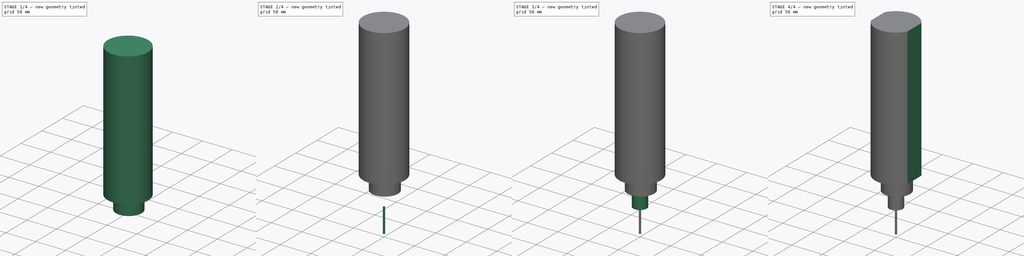
[diagram: build sequence overview — one tinted view per stage of 4, left to right]
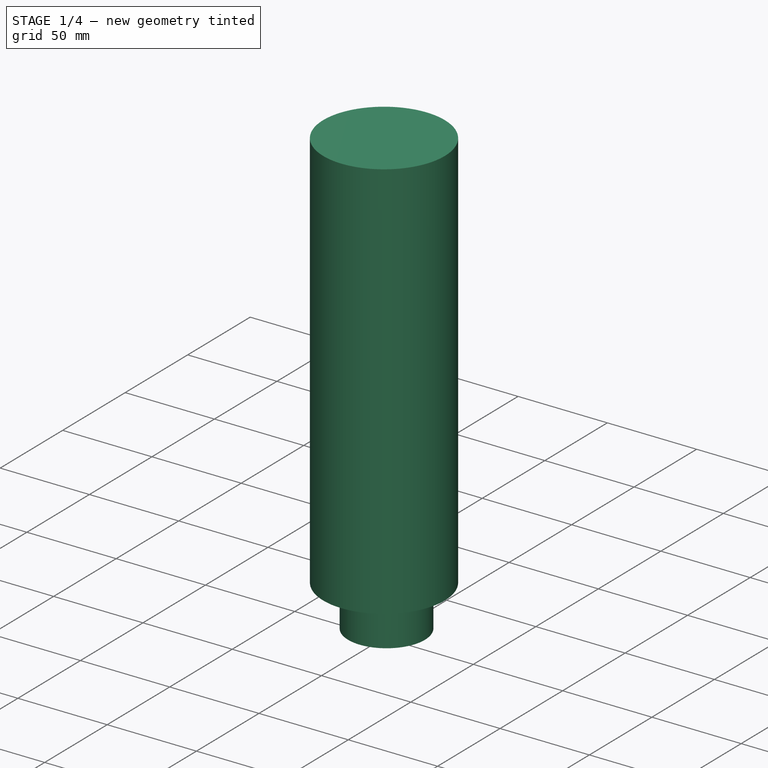
[diagram: stage 1 of 4 — iso view after this stage's code; geometry added in this stage tinted green]
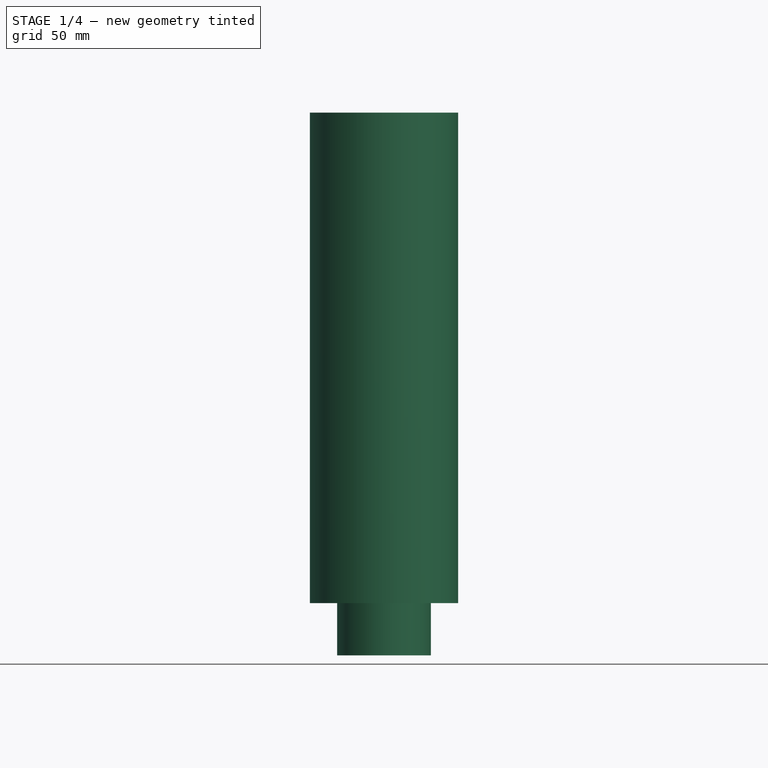
[diagram: stage 1 of 4 — front view after this stage's code; geometry added in this stage tinted green]
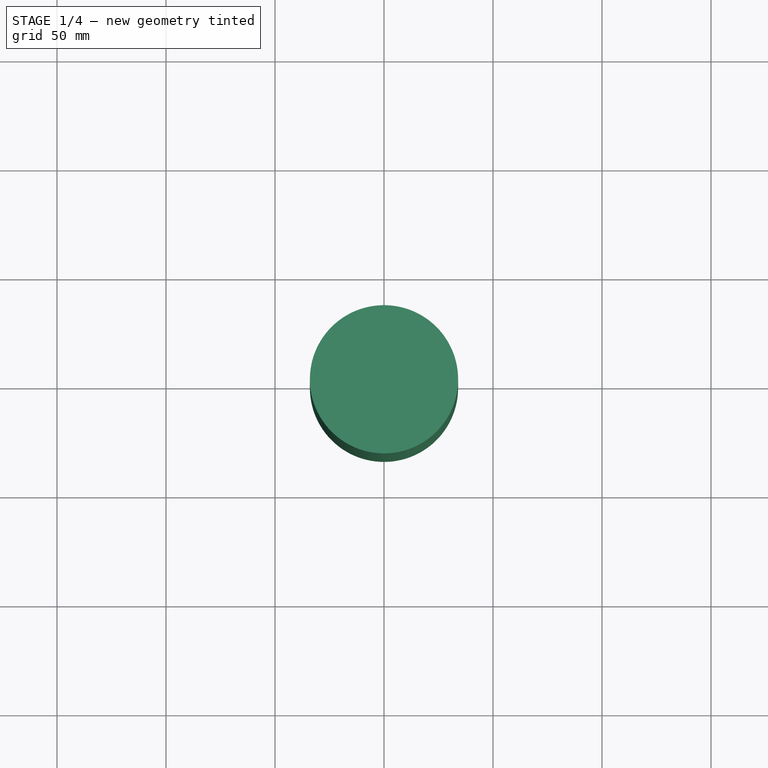
[diagram: stage 1 of 4 — top view after this stage's code; geometry added in this stage tinted green]
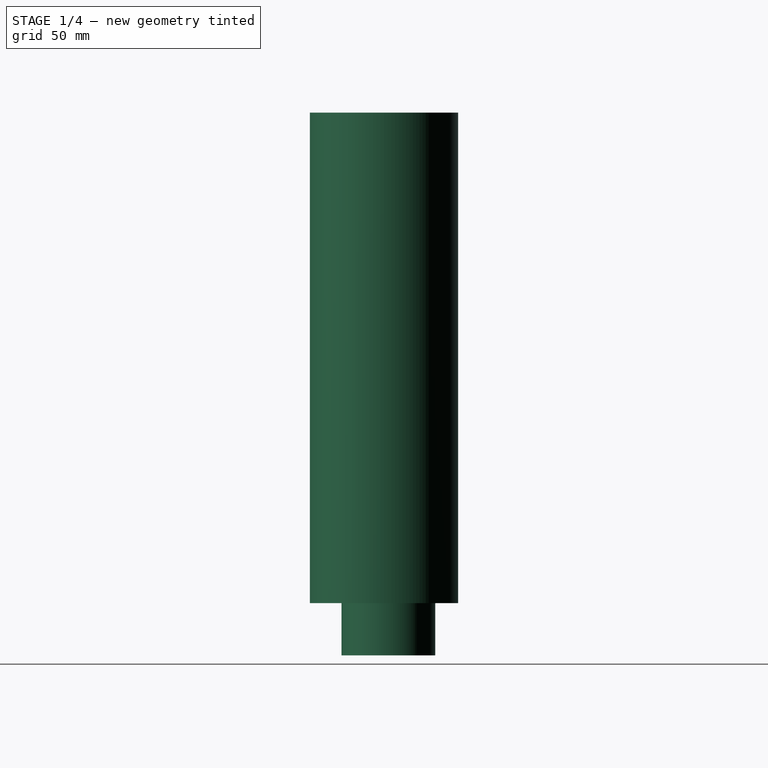
[diagram: stage 1 of 4 — right view after this stage's code; geometry added in this stage tinted green]
FCSTD DOCUMENT
Label: FME1050-1
objects: Part::Cylinder×4, Part::Fuse×2, Part::MultiFuse×1, Sketcher::SketchObject×1, Part::Part2DObjectPython×1, Part::Extrusion×1, Part::MultiCommon×1
note: 11 computed .brp shape members not serialized (recipe doc carries the construction recipe); baked Part::Feature solids carry a one-line shape summary decoded from their .brp

FEATURE [Part::Cylinder] Cylinder  label="Core"
  Angle = 360
  Height = 225
  Radius = 34
FEATURE [Part::Cylinder] Cylinder001  label="Mount"
  Angle = 360
  Height = 24
  Placement = pos=(0,2,-24) rot=(0,0,1;0rad)
  Radius = 21.5
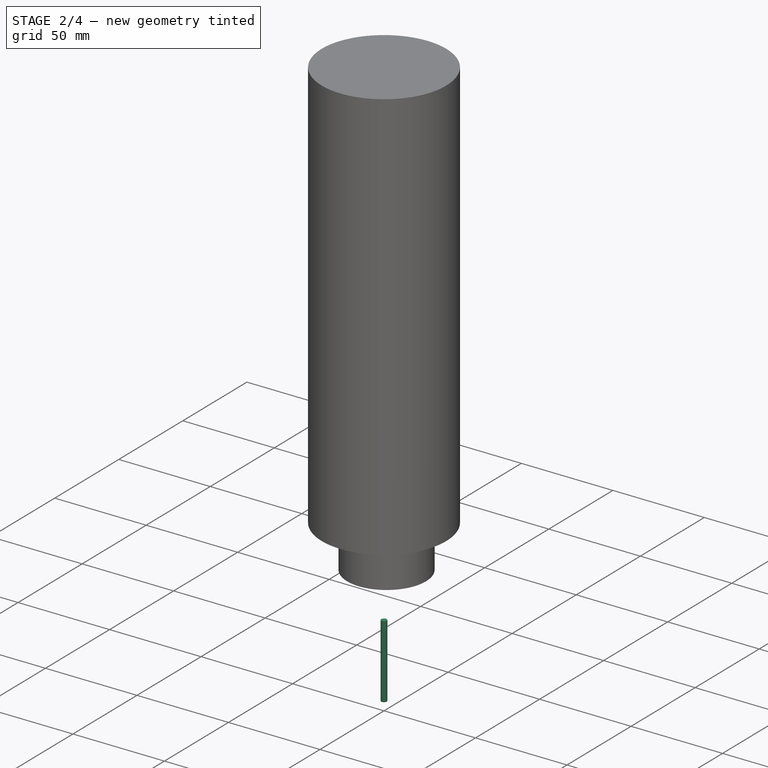
[diagram: stage 2 of 4 — iso view after this stage's code; geometry added in this stage tinted green]
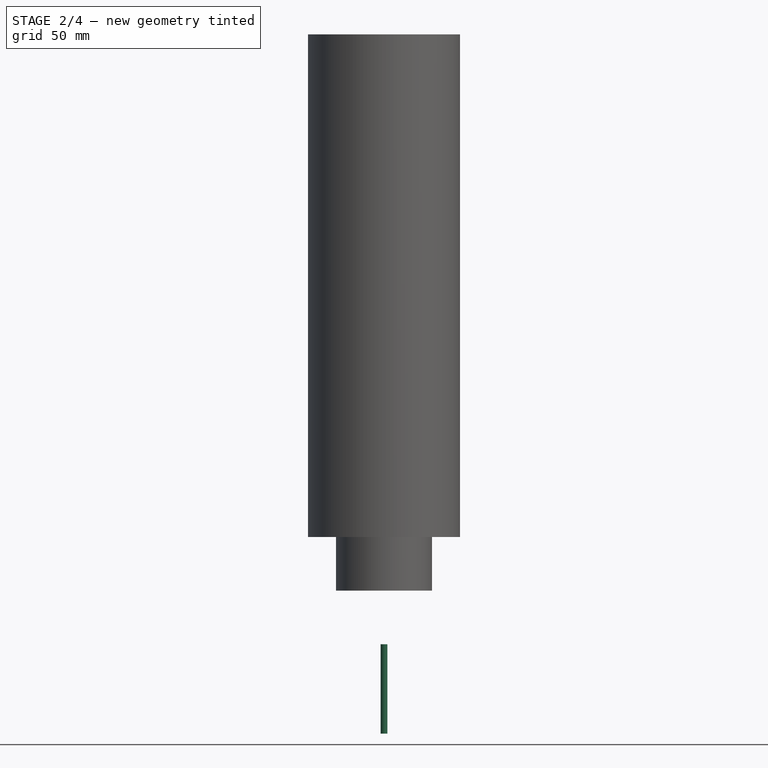
[diagram: stage 2 of 4 — front view after this stage's code; geometry added in this stage tinted green]
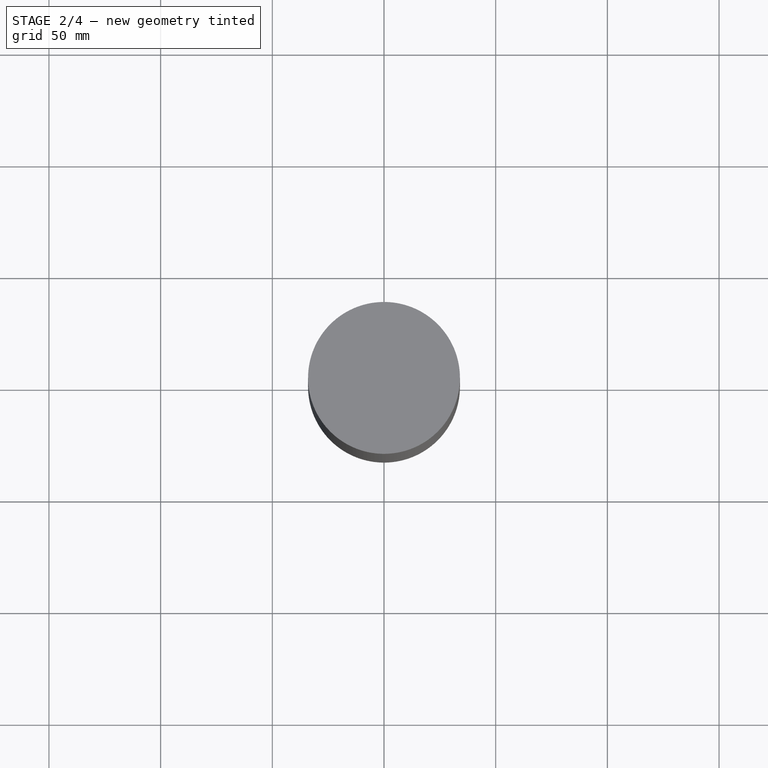
[diagram: stage 2 of 4 — top view after this stage's code; geometry added in this stage tinted green]
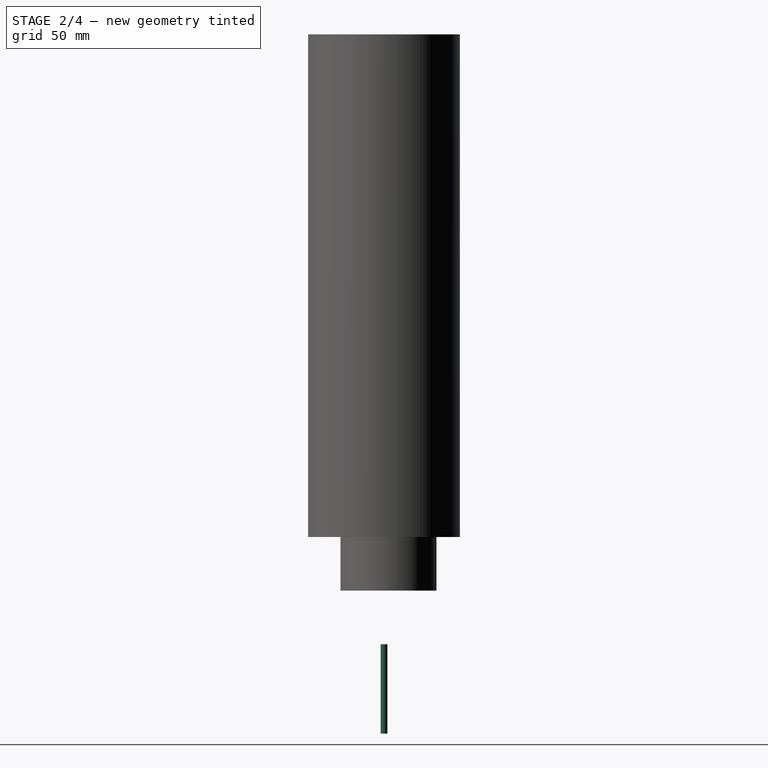
[diagram: stage 2 of 4 — right view after this stage's code; geometry added in this stage tinted green]
FEATURE [Part::Cylinder] Cylinder003  label="Mill"
  Angle = 360
  Height = 40
  Placement = pos=(0,0,-88) rot=(0,0,1;0rad)
  Radius = 1.5
FEATURE [Part::Fuse] Fusion
  Base = -> Cylinder
  Tool = -> Cylinder001
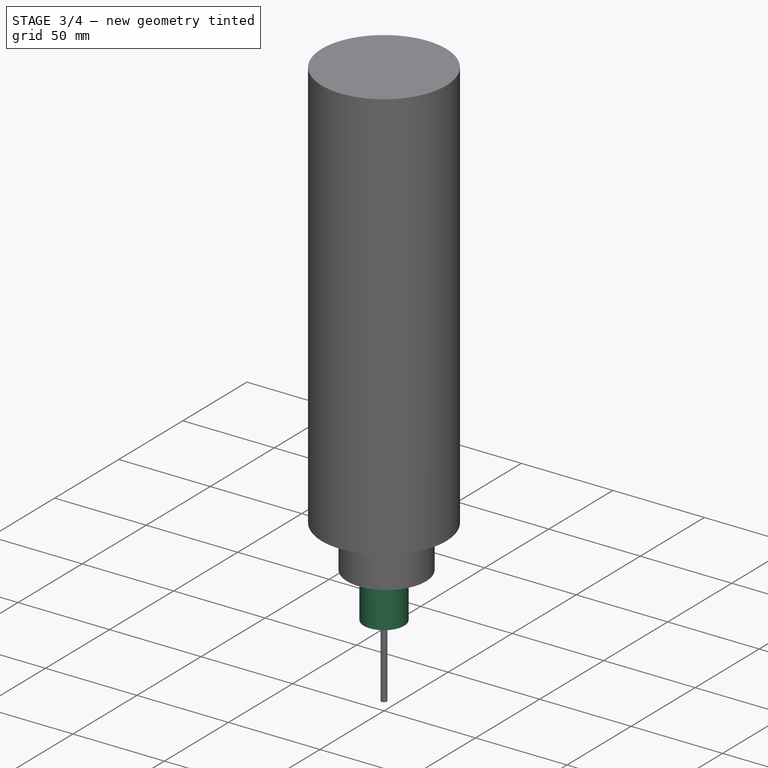
[diagram: stage 3 of 4 — iso view after this stage's code; geometry added in this stage tinted green]
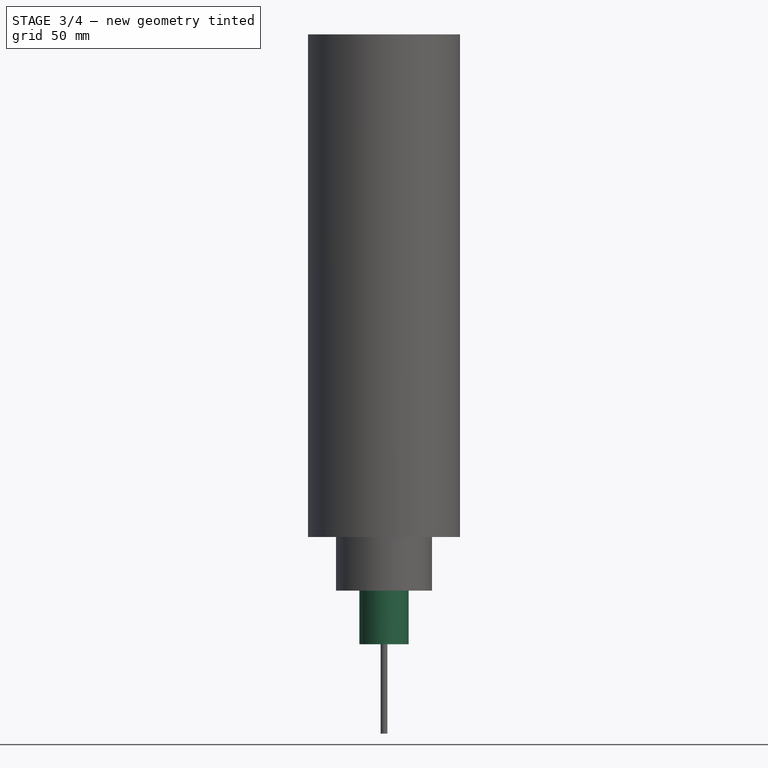
[diagram: stage 3 of 4 — front view after this stage's code; geometry added in this stage tinted green]
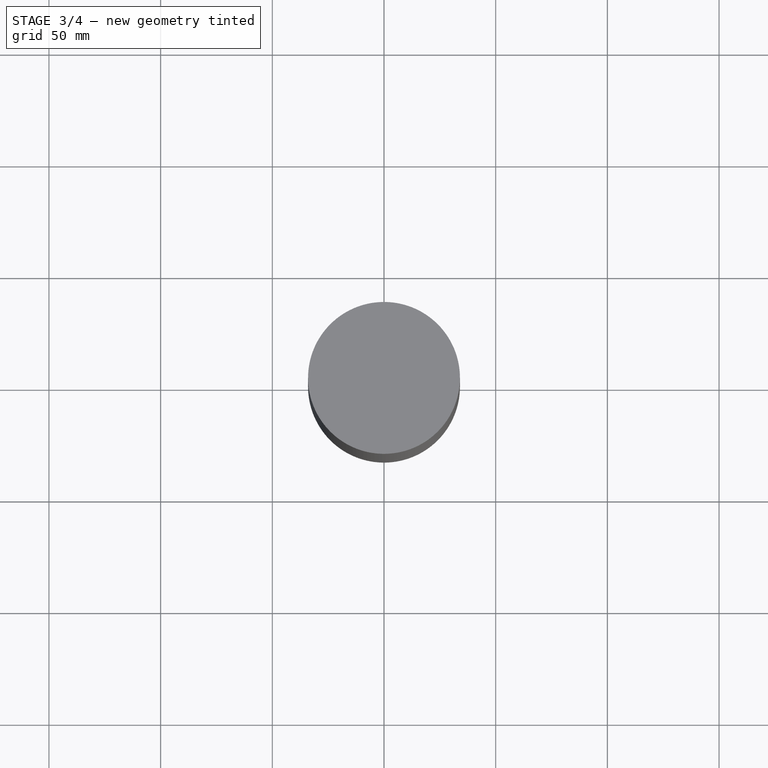
[diagram: stage 3 of 4 — top view after this stage's code; geometry added in this stage tinted green]
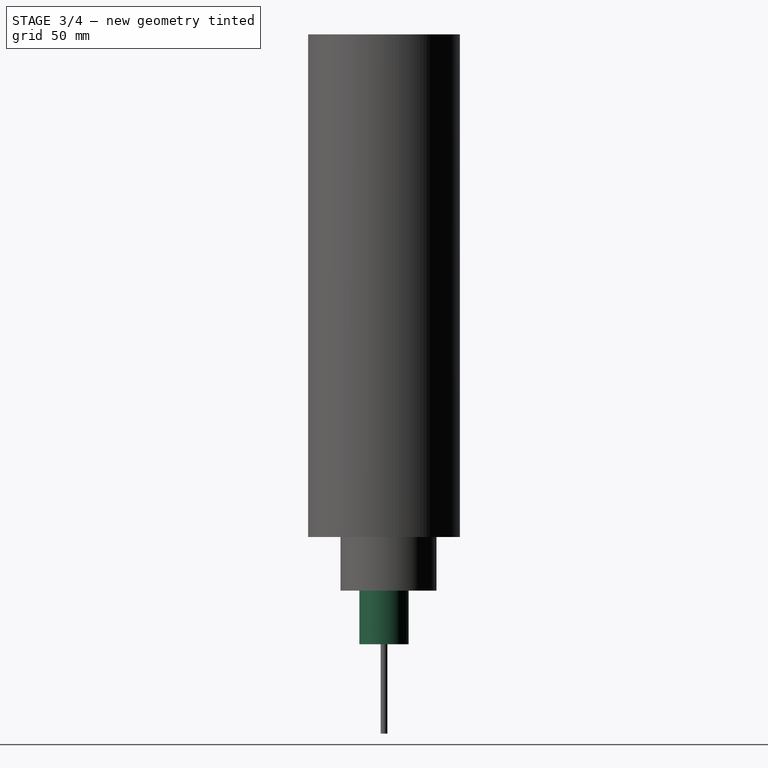
[diagram: stage 3 of 4 — right view after this stage's code; geometry added in this stage tinted green]
FEATURE [Part::Cylinder] Cylinder002  label="Collet"
  Angle = 360
  Height = 25
  Placement = pos=(0,0,-48) rot=(0,0,1;0rad)
  Radius = 11
FEATURE [Part::Fuse] Fusion001
  Base = -> Cylinder003
  Tool = -> Fusion
FEATURE [Part::MultiFuse] Fusion002
  Shapes = -> [Cylinder002,Fusion001]
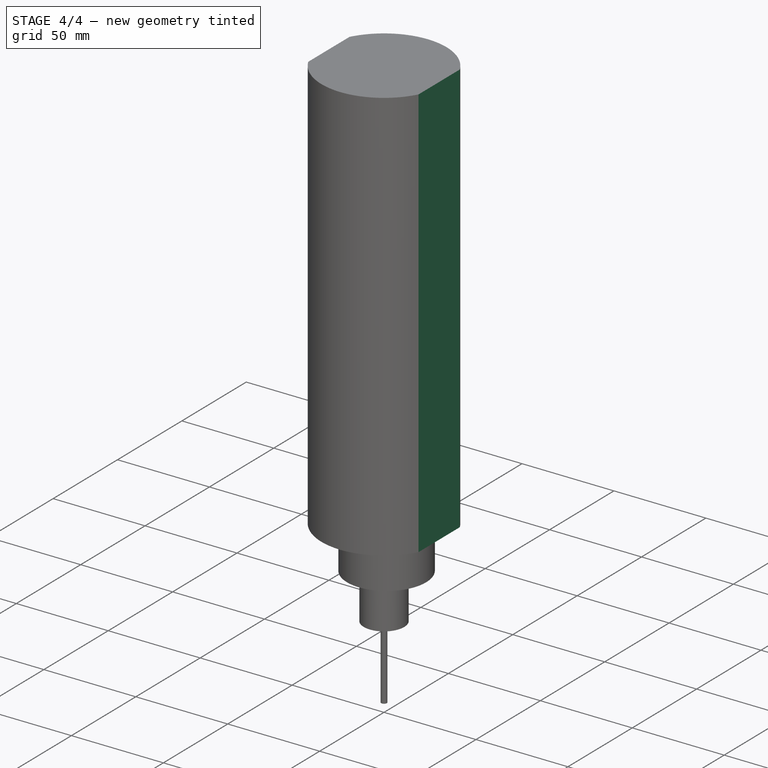
[diagram: stage 4 of 4 — iso view after this stage's code; geometry added in this stage tinted green]
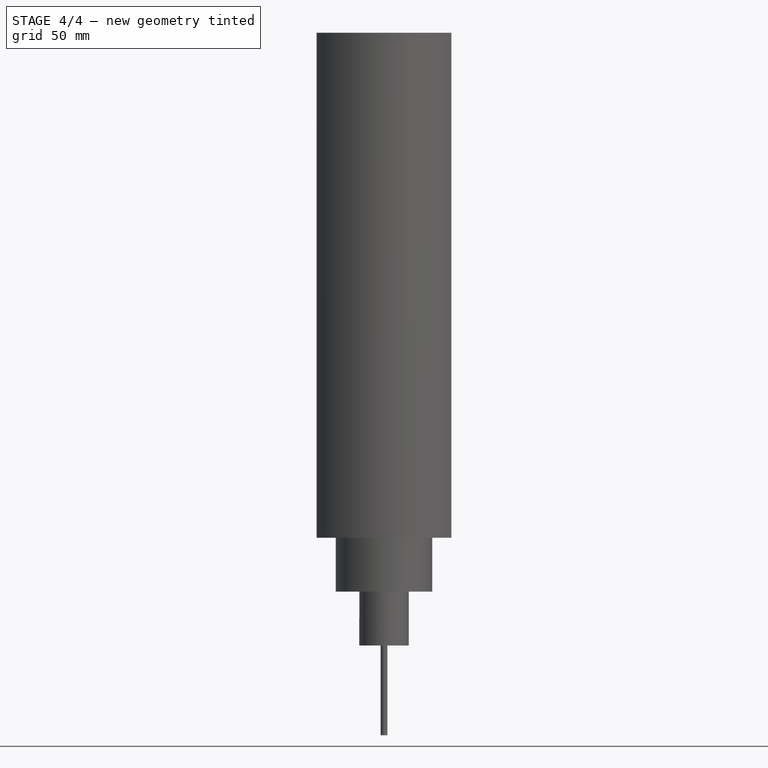
[diagram: stage 4 of 4 — front view after this stage's code; geometry added in this stage tinted green]
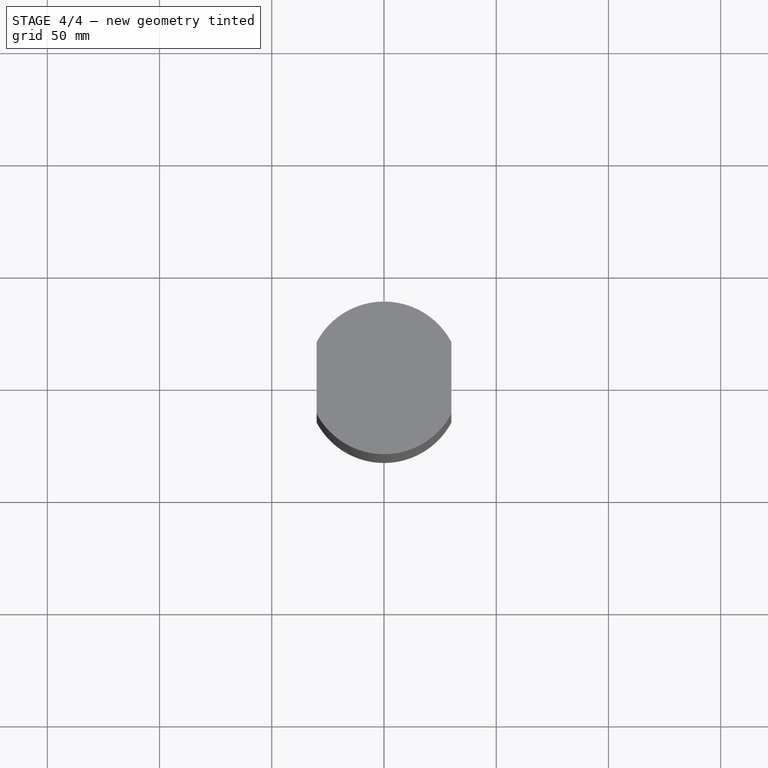
[diagram: stage 4 of 4 — top view after this stage's code; geometry added in this stage tinted green]
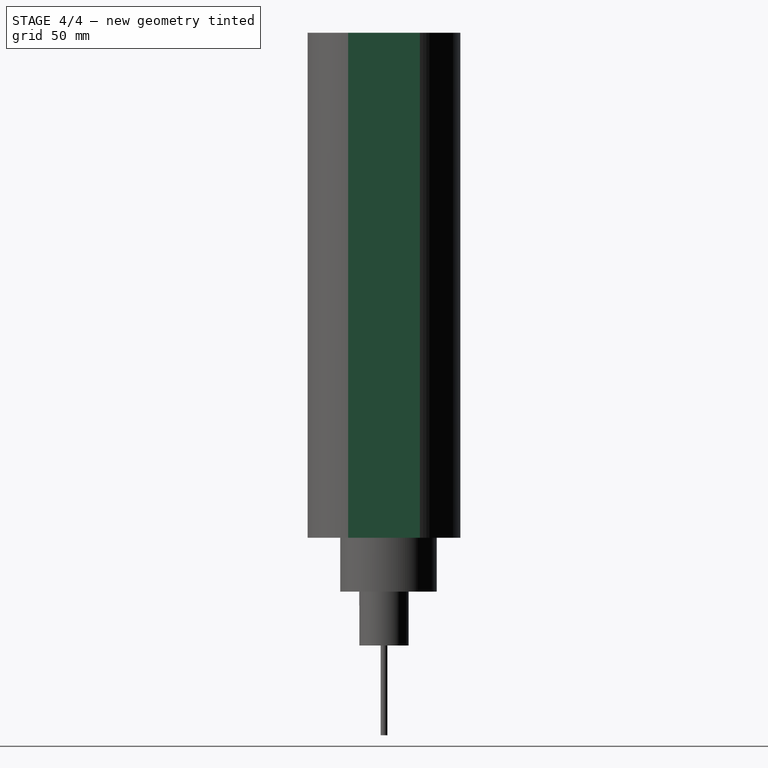
[diagram: stage 4 of 4 — right view after this stage's code; geometry added in this stage tinted green]
FEATURE [Sketcher::SketchObject] Sketch
  Placement = pos=(0,0,225) rot=(0,0,1;0rad)
  Support = -> Fusion002 [Face9]
  sketch-geometry (6):
    g0: LineSegment StartX=-30 StartY=40 StartZ=0 EndX=30 EndY=40 EndZ=0
    g1: LineSegment StartX=30 StartY=40 StartZ=0 EndX=30 EndY=-40 EndZ=0
    g2: LineSegment StartX=30 StartY=-40 StartZ=0 EndX=-30 EndY=-40 EndZ=0
    g3: LineSegment StartX=-30 StartY=-40 StartZ=0 EndX=-30 EndY=40 EndZ=0
    g4: LineSegment [constr] StartX=0 StartY=40 StartZ=0 EndX=0 EndY=-40 EndZ=0
    g5: LineSegment [constr] StartX=-30 StartY=0 StartZ=0 EndX=30 EndY=0 EndZ=0
  constraints (20):
    c: Coincident(g0,g1)
    c: Coincident(g1,g2)
    c: Coincident(g2,g3)
    c: Coincident(g3,g0)
    c: Horizontal(g0)
    c: Horizontal(g2)
    c: Vertical(g1)
    c: Vertical(g3)
    c: PointOnObject(g4,g0)
    c: PointOnObject(g4,g2)
    c: Vertical(g4)
    c: PointOnObject(g5,g3)
    c: PointOnObject(g5,g1)
    c: Horizontal(g5)
    c: DistanceY(g1) = -80
    c: DistanceX(g0) = 60
    c: Symmetric(g0,g1,g5)
    c: Symmetric(g2,g1,g4)
    c: PointOnObject(g-1,g5)
    c: PointOnObject(g-1,g4)
FEATURE [Part::Part2DObjectPython] DWire  # Draft 2D object (typed FeaturePython)
  Base = -> Sketch
  Closed = true
  End = (-30,-40,225)
  FilletRadius = 0
  Start = (-30,40,225)
FEATURE [Part::Extrusion] Extrude
  Base = -> DWire
  Dir = (0,0,-325)
  Solid = false
FEATURE [Part::MultiCommon] Common
  Shapes = -> [Extrude,Fusion002]
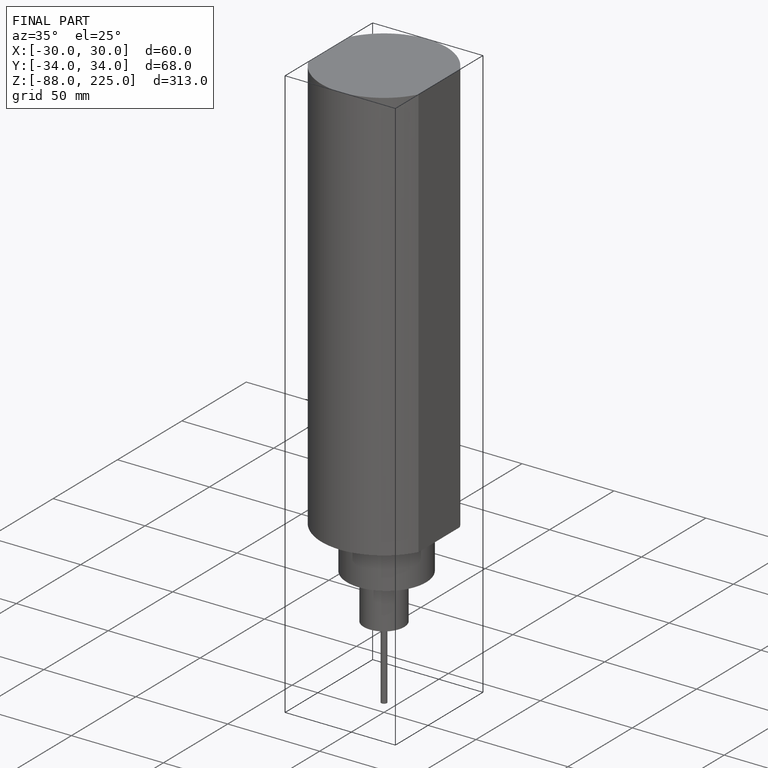
[diagram: finished part — iso view with bounding-box wireframe]
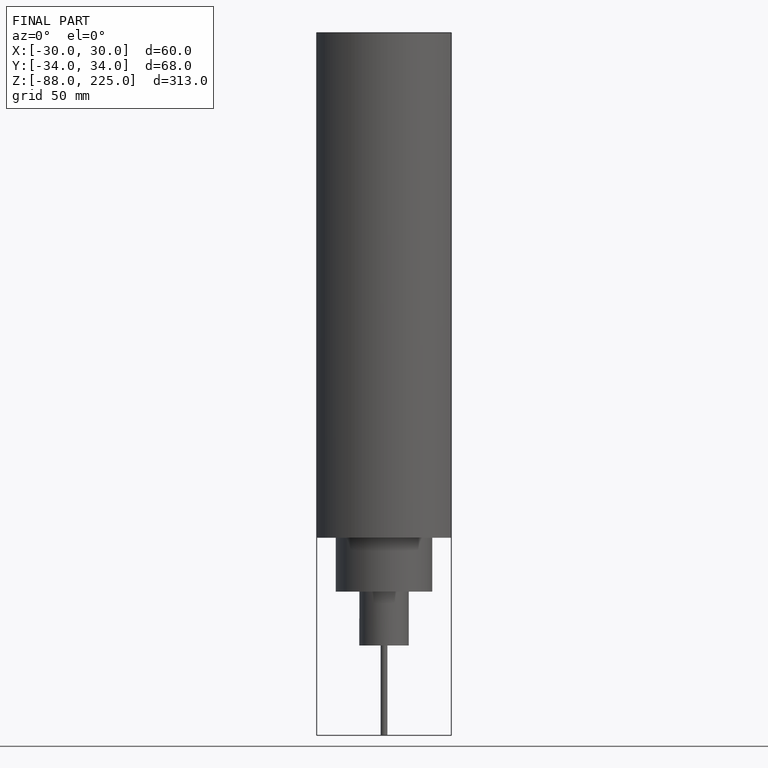
[diagram: finished part — front view with bounding-box wireframe]
